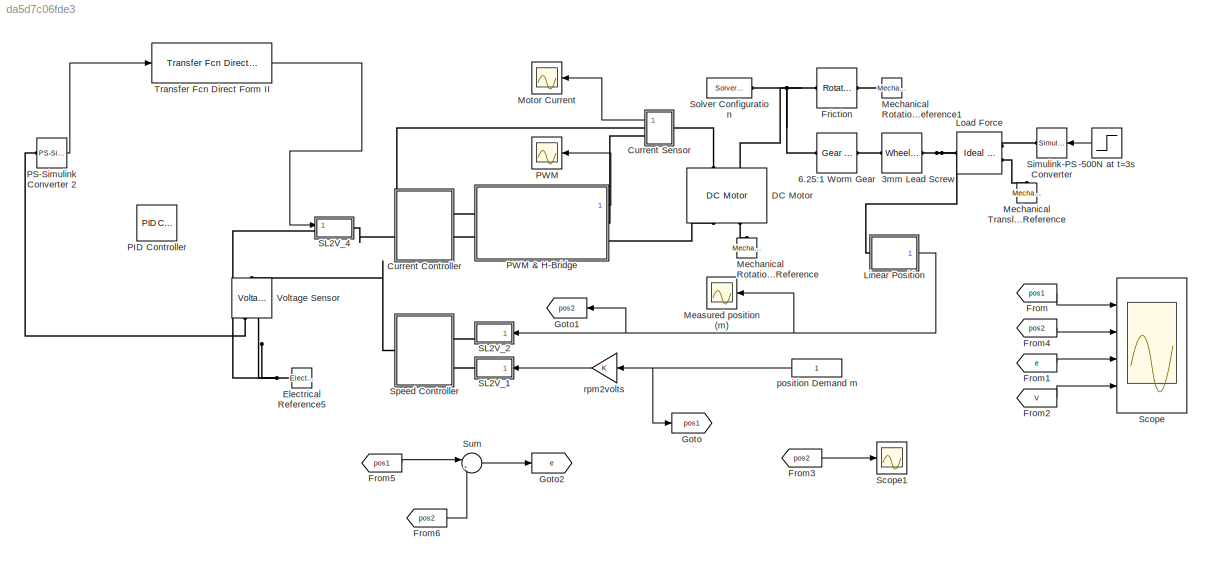
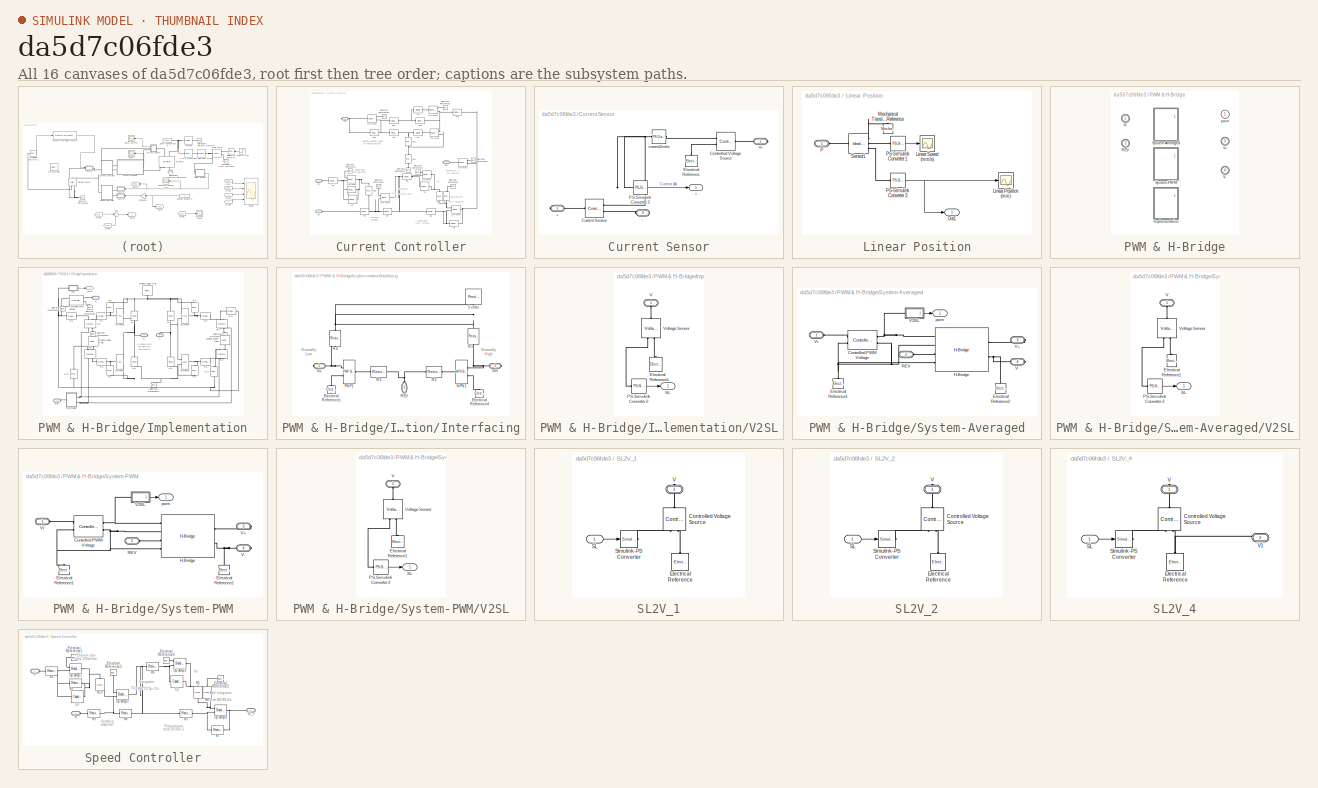
[diagram: thumbnail index - all 16 canvases of the model, root first then tree order]
MODEL slx_da5d7c06fde3
KIND model
CONFIG AbsTol = auto
CONFIG EnableMultiTasking = off
CONFIG FixedStep = auto
CONFIG MaxStep = auto
CONFIG MinStep = auto
CONFIG RelTol = 1e-3
CONFIG SampleTimeConstraint = Unconstrained
CONFIG Solver = VariableStepAuto
CONFIG SolverName = VariableStepAuto
CONFIG StartTime = 0.0
CONFIG StopTime = 6
BLOCK [Step] -500N at t=3s
  After = -1000
  SampleTime = 0
  Time = 3
BLOCK [Reference] 3mm Lead Screw  REF=fl_lib/Mechanical/Mechanisms/Wheel and Axle
  Ports = [0, 0, 0, 0, 0, 1, 1]
  SourceBlock = fl_lib/Mechanical/Mechanisms/Wheel and Axle
  SourceProductBaseCode = SS
  SourceType = Wheel and Axle
BLOCK [Reference] 6.25:1 Worm Gear  REF=fl_lib/Mechanical/Mechanisms/Gear Box
  Ports = [0, 0, 0, 0, 0, 1, 1]
  SourceBlock = fl_lib/Mechanical/Mechanisms/Gear Box
  SourceProductBaseCode = SS
  SourceType = Gear Box
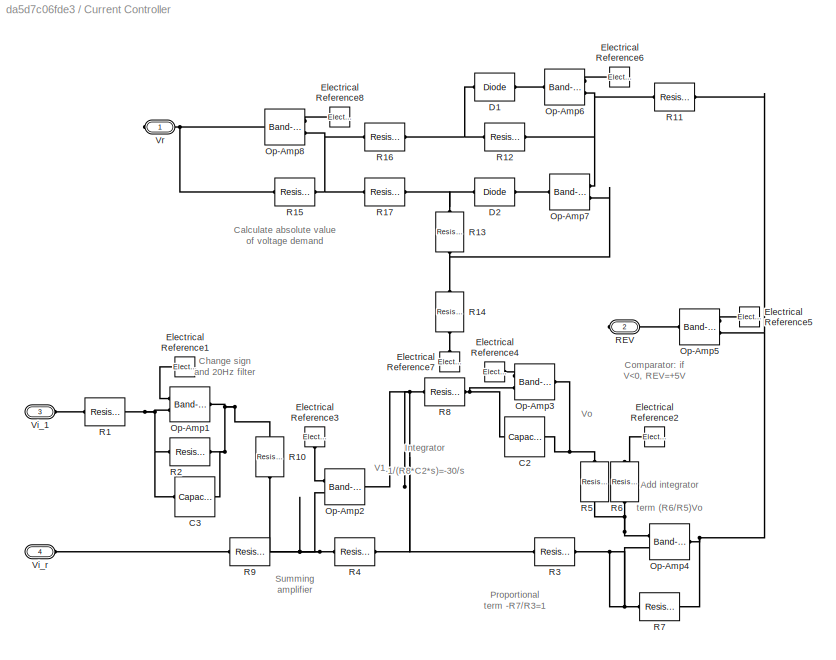
BLOCK [SubSystem] Current Controller
  Ports = [0, 0, 0, 0, 0, 2, 2]
  RequestExecContextInheritance = off
BLOCK [Reference] Current Controller/C2  REF=fl_lib/Electrical/Electrical Elements/Capacitor
  Ports = [0, 0, 0, 0, 0, 1, 1]
  SourceBlock = fl_lib/Electrical/Electrical Elements/Capacitor
  SourceProductBaseCode = SS
  SourceType = Capacitor
BLOCK [Reference] Current Controller/C3  REF=fl_lib/Electrical/Electrical Elements/Capacitor
  Ports = [0, 0, 0, 0, 0, 1, 1]
  SourceBlock = fl_lib/Electrical/Electrical Elements/Capacitor
  SourceProductBaseCode = SS
  SourceType = Capacitor
BLOCK [Reference] Current Controller/D1  REF=ee_lib/Semiconductors &
Converters/Diode
  Ports = [0, 0, 0, 0, 0, 1, 1]
  SourceBlock = ee_lib/Semiconductors &\nConverters/Diode
  SourceProductBaseCode = PS
  SourceType = Diode
BLOCK [Reference] Current Controller/D2  REF=ee_lib/Semiconductors &
Converters/Diode
  Ports = [0, 0, 0, 0, 0, 1, 1]
  SourceBlock = ee_lib/Semiconductors &\nConverters/Diode
  SourceProductBaseCode = PS
  SourceType = Diode
BLOCK [Reference] Current Controller/Electrical Reference1  REF=fl_lib/Electrical/Electrical Elements/Electrical Reference
  Ports = [0, 0, 0, 0, 0, 1]
  SourceBlock = fl_lib/Electrical/Electrical Elements/Electrical Reference
  SourceProductBaseCode = SS
  SourceType = Electrical Reference
BLOCK [Reference] Current Controller/Electrical Reference2  REF=fl_lib/Electrical/Electrical Elements/Electrical Reference
  Ports = [0, 0, 0, 0, 0, 1]
  SourceBlock = fl_lib/Electrical/Electrical Elements/Electrical Reference
  SourceProductBaseCode = SS
  SourceType = Electrical Reference
BLOCK [Reference] Current Controller/Electrical Reference3  REF=fl_lib/Electrical/Electrical Elements/Electrical Reference
  NameLocation = right
  Ports = [0, 0, 0, 0, 0, 1]
  SourceBlock = fl_lib/Electrical/Electrical Elements/Electrical Reference
  SourceProductBaseCode = SS
  SourceType = Electrical Reference
BLOCK [Reference] Current Controller/Electrical Reference4  REF=fl_lib/Electrical/Electrical Elements/Electrical Reference
  NameLocation = top
  Ports = [0, 0, 0, 0, 0, 1]
  SourceBlock = fl_lib/Electrical/Electrical Elements/Electrical Reference
  SourceProductBaseCode = SS
  SourceType = Electrical Reference
BLOCK [Reference] Current Controller/Electrical Reference5  REF=fl_lib/Electrical/Electrical Elements/Electrical Reference
  Ports = [0, 0, 0, 0, 0, 1]
  SourceBlock = fl_lib/Electrical/Electrical Elements/Electrical Reference
  SourceProductBaseCode = SS
  SourceType = Electrical Reference
BLOCK [Reference] Current Controller/Electrical Reference6  REF=fl_lib/Electrical/Electrical Elements/Electrical Reference
  Ports = [0, 0, 0, 0, 0, 1]
  SourceBlock = fl_lib/Electrical/Electrical Elements/Electrical Reference
  SourceProductBaseCode = SS
  SourceType = Electrical Reference
BLOCK [Reference] Current Controller/Electrical Reference7  REF=fl_lib/Electrical/Electrical Elements/Electrical Reference
  NameLocation = left
  Ports = [0, 0, 0, 0, 0, 1]
  SourceBlock = fl_lib/Electrical/Electrical Elements/Electrical Reference
  SourceProductBaseCode = SS
  SourceType = Electrical Reference
BLOCK [Reference] Current Controller/Electrical Reference8  REF=fl_lib/Electrical/Electrical Elements/Electrical Reference
  Ports = [0, 0, 0, 0, 0, 1]
  SourceBlock = fl_lib/Electrical/Electrical Elements/Electrical Reference
  SourceProductBaseCode = SS
  SourceType = Electrical Reference
BLOCK [Reference] Current Controller/Op-Amp1  REF=ee_lib/Integrated Circuits/Band-Limited Op-Amp
  Ports = [0, 0, 0, 0, 0, 2, 1]
  SourceBlock = ee_lib/Integrated Circuits/Band-Limited Op-Amp
  SourceProductBaseCode = PS
  SourceType = Band-Limited Op-Amp
BLOCK [Reference] Current Controller/Op-Amp2  REF=ee_lib/Integrated Circuits/Band-Limited Op-Amp
  Ports = [0, 0, 0, 0, 0, 2, 1]
  SourceBlock = ee_lib/Integrated Circuits/Band-Limited Op-Amp
  SourceProductBaseCode = PS
  SourceType = Band-Limited Op-Amp
BLOCK [Reference] Current Controller/Op-Amp3  REF=ee_lib/Integrated Circuits/Band-Limited Op-Amp
  Ports = [0, 0, 0, 0, 0, 2, 1]
  SourceBlock = ee_lib/Integrated Circuits/Band-Limited Op-Amp
  SourceProductBaseCode = PS
  SourceType = Band-Limited Op-Amp
BLOCK [Reference] Current Controller/Op-Amp4  REF=ee_lib/Integrated Circuits/Band-Limited Op-Amp
  Ports = [0, 0, 0, 0, 0, 2, 1]
  SourceBlock = ee_lib/Integrated Circuits/Band-Limited Op-Amp
  SourceProductBaseCode = PS
  SourceType = Band-Limited Op-Amp
BLOCK [Reference] Current Controller/Op-Amp5  REF=ee_lib/Integrated Circuits/Band-Limited Op-Amp
  Ports = [0, 0, 0, 0, 0, 2, 1]
  SourceBlock = ee_lib/Integrated Circuits/Band-Limited Op-Amp
  SourceProductBaseCode = PS
  SourceType = Band-Limited Op-Amp
BLOCK [Reference] Current Controller/Op-Amp6  REF=ee_lib/Integrated Circuits/Band-Limited Op-Amp
  Ports = [0, 0, 0, 0, 0, 2, 1]
  SourceBlock = ee_lib/Integrated Circuits/Band-Limited Op-Amp
  SourceProductBaseCode = PS
  SourceType = Band-Limited Op-Amp
BLOCK [Reference] Current Controller/Op-Amp7  REF=ee_lib/Integrated Circuits/Band-Limited Op-Amp
  Ports = [0, 0, 0, 0, 0, 2, 1]
  SourceBlock = ee_lib/Integrated Circuits/Band-Limited Op-Amp
  SourceProductBaseCode = PS
  SourceType = Band-Limited Op-Amp
BLOCK [Reference] Current Controller/Op-Amp8  REF=ee_lib/Integrated Circuits/Band-Limited Op-Amp
  Ports = [0, 0, 0, 0, 0, 2, 1]
  SourceBlock = ee_lib/Integrated Circuits/Band-Limited Op-Amp
  SourceProductBaseCode = PS
  SourceType = Band-Limited Op-Amp
BLOCK [Reference] Current Controller/R1  REF=fl_lib/Electrical/Electrical Elements/Resistor
  Ports = [0, 0, 0, 0, 0, 1, 1]
  SourceBlock = fl_lib/Electrical/Electrical Elements/Resistor
  SourceProductBaseCode = SS
  SourceType = Resistor
BLOCK [Reference] Current Controller/R10  REF=fl_lib/Electrical/Electrical Elements/Resistor
  NameLocation = right
  Ports = [0, 0, 0, 0, 0, 1, 1]
  SourceBlock = fl_lib/Electrical/Electrical Elements/Resistor
  SourceProductBaseCode = SS
  SourceType = Resistor
BLOCK [Reference] Current Controller/R11  REF=fl_lib/Electrical/Electrical Elements/Resistor
  Ports = [0, 0, 0, 0, 0, 1, 1]
  SourceBlock = fl_lib/Electrical/Electrical Elements/Resistor
  SourceProductBaseCode = SS
  SourceType = Resistor
BLOCK [Reference] Current Controller/R12  REF=fl_lib/Electrical/Electrical Elements/Resistor
  Ports = [0, 0, 0, 0, 0, 1, 1]
  SourceBlock = fl_lib/Electrical/Electrical Elements/Resistor
  SourceProductBaseCode = SS
  SourceType = Resistor
BLOCK [Reference] Current Controller/R13  REF=fl_lib/Electrical/Electrical Elements/Resistor
  NameLocation = left
  Ports = [0, 0, 0, 0, 0, 1, 1]
  SourceBlock = fl_lib/Electrical/Electrical Elements/Resistor
  SourceProductBaseCode = SS
  SourceType = Resistor
BLOCK [Reference] Current Controller/R14  REF=fl_lib/Electrical/Electrical Elements/Resistor
  NameLocation = left
  Ports = [0, 0, 0, 0, 0, 1, 1]
  SourceBlock = fl_lib/Electrical/Electrical Elements/Resistor
  SourceProductBaseCode = SS
  SourceType = Resistor
BLOCK [Reference] Current Controller/R15  REF=fl_lib/Electrical/Electrical Elements/Resistor
  Ports = [0, 0, 0, 0, 0, 1, 1]
  SourceBlock = fl_lib/Electrical/Electrical Elements/Resistor
  SourceProductBaseCode = SS
  SourceType = Resistor
BLOCK [Reference] Current Controller/R16  REF=fl_lib/Electrical/Electrical Elements/Resistor
  Ports = [0, 0, 0, 0, 0, 1, 1]
  SourceBlock = fl_lib/Electrical/Electrical Elements/Resistor
  SourceProductBaseCode = SS
  SourceType = Resistor
BLOCK [Reference] Current Controller/R17  REF=fl_lib/Electrical/Electrical Elements/Resistor
  Ports = [0, 0, 0, 0, 0, 1, 1]
  SourceBlock = fl_lib/Electrical/Electrical Elements/Resistor
  SourceProductBaseCode = SS
  SourceType = Resistor
BLOCK [Reference] Current Controller/R2  REF=fl_lib/Electrical/Electrical Elements/Resistor
  Ports = [0, 0, 0, 0, 0, 1, 1]
  SourceBlock = fl_lib/Electrical/Electrical Elements/Resistor
  SourceProductBaseCode = SS
  SourceType = Resistor
BLOCK [Reference] Current Controller/R3  REF=fl_lib/Electrical/Electrical Elements/Resistor
  Ports = [0, 0, 0, 0, 0, 1, 1]
  SourceBlock = fl_lib/Electrical/Electrical Elements/Resistor
  SourceProductBaseCode = SS
  SourceType = Resistor
BLOCK [Reference] Current Controller/R4  REF=fl_lib/Electrical/Electrical Elements/Resistor
  Ports = [0, 0, 0, 0, 0, 1, 1]
  SourceBlock = fl_lib/Electrical/Electrical Elements/Resistor
  SourceProductBaseCode = SS
  SourceType = Resistor
BLOCK [Reference] Current Controller/R5  REF=fl_lib/Electrical/Electrical Elements/Resistor
  NameLocation = left
  Ports = [0, 0, 0, 0, 0, 1, 1]
  SourceBlock = fl_lib/Electrical/Electrical Elements/Resistor
  SourceProductBaseCode = SS
  SourceType = Resistor
BLOCK [Reference] Current Controller/R6  REF=fl_lib/Electrical/Electrical Elements/Resistor
  NameLocation = right
  Ports = [0, 0, 0, 0, 0, 1, 1]
  SourceBlock = fl_lib/Electrical/Electrical Elements/Resistor
  SourceProductBaseCode = SS
  SourceType = Resistor
BLOCK [Reference] Current Controller/R7  REF=fl_lib/Electrical/Electrical Elements/Resistor
  Ports = [0, 0, 0, 0, 0, 1, 1]
  SourceBlock = fl_lib/Electrical/Electrical Elements/Resistor
  SourceProductBaseCode = SS
  SourceType = Resistor
BLOCK [Reference] Current Controller/R8  REF=fl_lib/Electrical/Electrical Elements/Resistor
  Ports = [0, 0, 0, 0, 0, 1, 1]
  SourceBlock = fl_lib/Electrical/Electrical Elements/Resistor
  SourceProductBaseCode = SS
  SourceType = Resistor
BLOCK [Reference] Current Controller/R9  REF=fl_lib/Electrical/Electrical Elements/Resistor
  Ports = [0, 0, 0, 0, 0, 1, 1]
  SourceBlock = fl_lib/Electrical/Electrical Elements/Resistor
  SourceProductBaseCode = SS
  SourceType = Resistor
BLOCK [PMIOPort] Current Controller/REV
  Port = 2
  Side = Right
BLOCK [PMIOPort] Current Controller/Vi_1
  Port = 3
  Side = Left
BLOCK [PMIOPort] Current Controller/Vi_r
  NameLocation = top
  Port = 4
  Side = Left
BLOCK [PMIOPort] Current Controller/Vr
  Side = Right
BLOCK [SubSystem] Current Sensor
  Ports = [0, 1, 0, 0, 0, 1, 2]
  RequestExecContextInheritance = off
BLOCK [PMIOPort] Current Sensor/+
  Port = 2
  Side = Right
BLOCK [PMIOPort] Current Sensor/-
  Port = 3
  Side = Left
BLOCK [Reference] Current Sensor/Controlled Voltage Source  REF=fl_lib/Electrical/Electrical Sources/Controlled Voltage
Source
  Ports = [0, 0, 0, 0, 0, 1, 2]
  SourceBlock = fl_lib/Electrical/Electrical Sources/Controlled Voltage\nSource
  SourceProductBaseCode = SS
  SourceType = Controlled Voltage\nSource
BLOCK [Reference] Current Sensor/Current Sensor  REF=fl_lib/Electrical/Electrical Sensors/Current Sensor
  Ports = [0, 0, 0, 0, 0, 1, 2]
  SourceBlock = fl_lib/Electrical/Electrical Sensors/Current Sensor
  SourceProductBaseCode = SS
  SourceType = Current Sensor
BLOCK [Reference] Current Sensor/Electrical Reference  REF=fl_lib/Electrical/Electrical Elements/Electrical Reference
  NameLocation = right
  Ports = [0, 0, 0, 0, 0, 1]
  SourceBlock = fl_lib/Electrical/Electrical Elements/Electrical Reference
  SourceProductBaseCode = SS
  SourceType = Electrical Reference
BLOCK [Reference] Current Sensor/PS-Simulink Converter 2  REF=nesl_utility/PS-Simulink
Converter
  Ports = [0, 1, 0, 0, 0, 1]
  SourceBlock = nesl_utility/PS-Simulink\nConverter
  SourceProductBaseCode = SS
  SourceType = PS-Simulink\nConverter
BLOCK [PMIOPort] Current Sensor/Vi
  Side = Right
BLOCK [Reference] Current Sensor/current2volts  REF=fl_ps_legacy_lib/Legacy Physical
Signals/Functions/PS Gain
  Ports = [0, 0, 0, 0, 0, 1, 1]
  SourceBlock = fl_ps_legacy_lib/Legacy Physical\nSignals/Functions/PS Gain
  SourceProductBaseCode = SS
  SourceType = PS Gain
BLOCK [Outport] Current Sensor/i
BLOCK [Reference] DC Motor  REF=ee_lib/Electromechanical/Brushed Motors/DC Motor
  NameLocation = left
  Ports = [0, 0, 0, 0, 0, 2, 2]
  SourceBlock = ee_lib/Electromechanical/Brushed Motors/DC Motor
  SourceProductBaseCode = PS
  SourceType = DC Motor
BLOCK [Reference] Electrical Reference5  REF=fl_lib/Electrical/Electrical Elements/Electrical Reference
  Ports = [0, 0, 0, 0, 0, 1]
  SourceBlock = fl_lib/Electrical/Electrical Elements/Electrical Reference
  SourceProductBaseCode = SS
  SourceType = Electrical Reference
BLOCK [Reference] Friction  REF=fl_lib/Mechanical/Rotational Elements/Rotational Friction
  Ports = [0, 0, 0, 0, 0, 1, 1]
  SourceBlock = fl_lib/Mechanical/Rotational Elements/Rotational Friction
  SourceProductBaseCode = SS
  SourceType = Rotational Friction
BLOCK [From] From
  GotoTag = pos1
BLOCK [From] From1
  GotoTag = e
BLOCK [From] From2
  GotoTag = V
BLOCK [From] From3
  GotoTag = pos2
BLOCK [From] From4
  GotoTag = pos2
BLOCK [From] From5
  GotoTag = pos1
BLOCK [From] From6
  GotoTag = pos2
BLOCK [Goto] Goto
  GotoTag = pos1
BLOCK [Goto] Goto1
  GotoTag = pos2
BLOCK [Goto] Goto2
  GotoTag = e
BLOCK [SubSystem] Linear Position
  NameLocation = top
  Ports = [0, 1, 0, 0, 0, 1]
  RequestExecContextInheritance = off
BLOCK [Scope] Linear Position/Linear Position (mm)
  Floating = off
  NumInputPorts = 1
  Ports = [1]
  ScopeSpecificationString = Simulink.scopes.TimeScopeBlockCfg('CurrentConfiguration', extmgr.ConfigurationSet(extmgr.Configuration('Core','General UI',true),extmgr.Configuration('Core','Source UI',true),extmgr.Configuration('Sources','WiredSimulink',true,'DataLoggingVariableName','ScopeData2','DataLoggingSaveFormat','StructureWithTime','DataLoggingDecimation','1','DataLoggingDecimateData',true),extmgr.Configuration('Visuals'...<+1714ch>
BLOCK [Scope] Linear Position/Linear Speed (mm//s)
  Floating = off
  NumInputPorts = 1
  Ports = [1]
  ScopeSpecificationString = Simulink.scopes.TimeScopeBlockCfg('CurrentConfiguration', extmgr.ConfigurationSet(extmgr.Configuration('Core','General UI',true),extmgr.Configuration('Core','Source UI',true),extmgr.Configuration('Sources','WiredSimulink',true,'DataLoggingSaveFormat','StructureWithTime','DataLoggingDecimation','1','DataLoggingDecimateData',true),extmgr.Configuration('Visuals','Time Domain',true,'SerializedDisplays...<+1679ch>
BLOCK [Reference] Linear Position/Mechanical Translational Reference  REF=fl_lib/Mechanical/Translational
Elements/Mechanical
Translational
Reference
  NameLocation = right
  Ports = [0, 0, 0, 0, 0, 1]
  SourceBlock = fl_lib/Mechanical/Translational\nElements/Mechanical\nTranslational\nReference
  SourceProductBaseCode = SS
  SourceType = Mechanical\nTranslational\nReference
BLOCK [Outport] Linear Position/Out1
BLOCK [PMIOPort] Linear Position/P
  Side = Left
BLOCK [Reference] Linear Position/PS-Simulink Converter 1  REF=nesl_utility/PS-Simulink
Converter
  Ports = [0, 1, 0, 0, 0, 1]
  SourceBlock = nesl_utility/PS-Simulink\nConverter
  SourceProductBaseCode = SS
  SourceType = PS-Simulink\nConverter
BLOCK [Reference] Linear Position/PS-Simulink Converter 3  REF=nesl_utility/PS-Simulink
Converter
  Ports = [0, 1, 0, 0, 0, 1]
  SourceBlock = nesl_utility/PS-Simulink\nConverter
  SourceProductBaseCode = SS
  SourceType = PS-Simulink\nConverter
BLOCK [Reference] Linear Position/Sensor1  REF=fl_lib/Mechanical/Mechanical Sensors/Ideal Translational
Motion Sensor
  Ports = [0, 0, 0, 0, 0, 1, 3]
  SourceBlock = fl_lib/Mechanical/Mechanical Sensors/Ideal Translational\nMotion Sensor
  SourceProductBaseCode = SS
  SourceType = Ideal Translational\nMotion Sensor
BLOCK [Reference] Load Force  REF=fl_lib/Mechanical/Mechanical Sources/Ideal Force Source
  Ports = [0, 0, 0, 0, 0, 1, 2]
  SourceBlock = fl_lib/Mechanical/Mechanical Sources/Ideal Force Source
  SourceProductBaseCode = SS
  SourceType = Ideal Force Source
BLOCK [Scope] Measured position (m)
  Floating = off
  NumInputPorts = 1
  Ports = [1]
  ScopeSpecificationString = Simulink.scopes.TimeScopeBlockCfg('CurrentConfiguration', extmgr.ConfigurationSet(extmgr.Configuration('Core','General UI',true),extmgr.Configuration('Core','Source UI',true),extmgr.Configuration('Sources','WiredSimulink',true,'DataLoggingVariableName','ScopeData1','DataLoggingSaveFormat','StructureWithTime','DataLoggingDecimation','1','DataLoggingDecimateData',true),extmgr.Configuration('Visuals'...<+1749ch>
BLOCK [Reference] Mechanical Rotational Reference  REF=fl_lib/Mechanical/Rotational Elements/Mechanical
Rotational Reference
  NameLocation = left
  Ports = [0, 0, 0, 0, 0, 1]
  SourceBlock = fl_lib/Mechanical/Rotational Elements/Mechanical\nRotational Reference
  SourceProductBaseCode = SS
  SourceType = Mechanical\nRotational Reference
BLOCK [Reference] Mechanical Rotational Reference1  REF=fl_lib/Mechanical/Rotational Elements/Mechanical
Rotational Reference
  Ports = [0, 0, 0, 0, 0, 1]
  SourceBlock = fl_lib/Mechanical/Rotational Elements/Mechanical\nRotational Reference
  SourceProductBaseCode = SS
  SourceType = Mechanical\nRotational Reference
BLOCK [Reference] Mechanical Translational Reference  REF=fl_lib/Mechanical/Translational
Elements/Mechanical
Translational
Reference
  NameLocation = right
  Ports = [0, 0, 0, 0, 0, 1]
  SourceBlock = fl_lib/Mechanical/Translational\nElements/Mechanical\nTranslational\nReference
  SourceProductBaseCode = SS
  SourceType = Mechanical\nTranslational\nReference
BLOCK [Scope] Motor Current
  Floating = off
  NumInputPorts = 1
  Ports = [1]
  ScopeSpecificationString = Simulink.scopes.TimeScopeBlockCfg('CurrentConfiguration', extmgr.ConfigurationSet(extmgr.Configuration('Core','General UI',true),extmgr.Configuration('Core','Source UI',true),extmgr.Configuration('Sources','WiredSimulink',true,'DataLoggingVariableName','ScopeData2','DataLoggingSaveFormat','StructureWithTime','DataLoggingDecimation','1','DataLoggingDecimateData',true),extmgr.Configuration('Visuals'...<+1670ch>
BLOCK [Reference] PID Controller  REF=simulink/Continuous/PID Controller
  Ports = [1, 1]
  SourceBlock = simulink/Continuous/PID Controller
  SourceProductBaseCode = SL
  SourceType = PID 1dof
BLOCK [Reference] PS-Simulink Converter 2  REF=nesl_utility/PS-Simulink
Converter
  Ports = [0, 1, 0, 0, 0, 1]
  SourceBlock = nesl_utility/PS-Simulink\nConverter
  SourceProductBaseCode = SS
  SourceType = PS-Simulink\nConverter
BLOCK [Scope] PWM
  Floating = off
  NumInputPorts = 1
  Ports = [1]
  ScopeSpecificationString = Simulink.scopes.TimeScopeBlockCfg('CurrentConfiguration', extmgr.ConfigurationSet(extmgr.Configuration('Core','General UI',true),extmgr.Configuration('Core','Source UI',true),extmgr.Configuration('Sources','WiredSimulink',true,'DataLoggingVariableName','ScopeData3','DataLoggingSaveFormat','StructureWithTime','DataLoggingDecimation','1','DataLoggingDecimateData',true),extmgr.Configuration('Visuals'...<+1750ch>
BLOCK [SubSystem] PWM & H-Bridge
  AttributesFormatString = %<BlockChoice>
  LabelModeActiveChoice = pwm_choice==1
  Ports = [0, 1, 0, 0, 0, 2, 2]
  RequestExecContextInheritance = off
  Variant = on
  VariantControlMode = Label
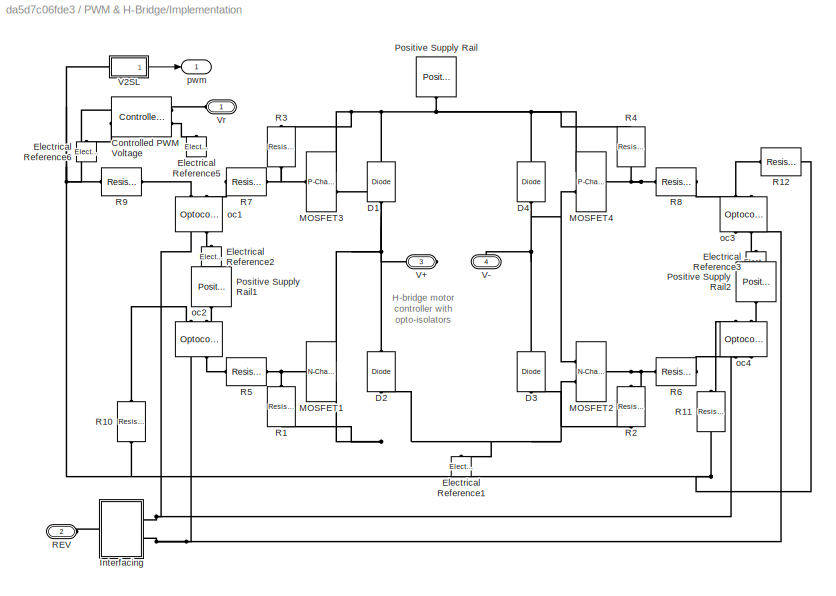
BLOCK [SubSystem] PWM & H-Bridge/Implementation
  Ports = [0, 1, 0, 0, 0, 2, 2]
  RequestExecContextInheritance = off
  VariantControl = pwm_choice==3
BLOCK [Reference] PWM & H-Bridge/Implementation/Controlled PWM Voltage  REF=ee_lib/Integrated Circuits/Controlled PWM
Voltage
  Ports = [0, 0, 0, 0, 0, 2, 2]
  SourceBlock = ee_lib/Integrated Circuits/Controlled PWM\nVoltage
  SourceProductBaseCode = PS
  SourceType = Controlled PWM\nVoltage
BLOCK [Reference] PWM & H-Bridge/Implementation/D1  REF=fl_lib/Electrical/Electrical Elements/Diode
  NameLocation = right
  Ports = [0, 0, 0, 0, 0, 1, 1]
  SourceBlock = fl_lib/Electrical/Electrical Elements/Diode
  SourceProductBaseCode = SS
  SourceType = Diode
BLOCK [Reference] PWM & H-Bridge/Implementation/D2  REF=fl_lib/Electrical/Electrical Elements/Diode
  NameLocation = right
  Ports = [0, 0, 0, 0, 0, 1, 1]
  SourceBlock = fl_lib/Electrical/Electrical Elements/Diode
  SourceProductBaseCode = SS
  SourceType = Diode
BLOCK [Reference] PWM & H-Bridge/Implementation/D3  REF=fl_lib/Electrical/Electrical Elements/Diode
  NameLocation = right
  Ports = [0, 0, 0, 0, 0, 1, 1]
  SourceBlock = fl_lib/Electrical/Electrical Elements/Diode
  SourceProductBaseCode = SS
  SourceType = Diode
BLOCK [Reference] PWM & H-Bridge/Implementation/D4  REF=fl_lib/Electrical/Electrical Elements/Diode
  NameLocation = right
  Ports = [0, 0, 0, 0, 0, 1, 1]
  SourceBlock = fl_lib/Electrical/Electrical Elements/Diode
  SourceProductBaseCode = SS
  SourceType = Diode
BLOCK [Reference] PWM & H-Bridge/Implementation/Electrical Reference1  REF=fl_lib/Electrical/Electrical Elements/Electrical Reference
  NameLocation = right
  Ports = [0, 0, 0, 0, 0, 1]
  SourceBlock = fl_lib/Electrical/Electrical Elements/Electrical Reference
  SourceProductBaseCode = SS
  SourceType = Electrical Reference
BLOCK [Reference] PWM & H-Bridge/Implementation/Electrical Reference2  REF=fl_lib/Electrical/Electrical Elements/Electrical Reference
  NameLocation = right
  Ports = [0, 0, 0, 0, 0, 1]
  SourceBlock = fl_lib/Electrical/Electrical Elements/Electrical Reference
  SourceProductBaseCode = SS
  SourceType = Electrical Reference
BLOCK [Reference] PWM & H-Bridge/Implementation/Electrical Reference3  REF=fl_lib/Electrical/Electrical Elements/Electrical Reference
  NameLocation = right
  Ports = [0, 0, 0, 0, 0, 1]
  SourceBlock = fl_lib/Electrical/Electrical Elements/Electrical Reference
  SourceProductBaseCode = SS
  SourceType = Electrical Reference
BLOCK [Reference] PWM & H-Bridge/Implementation/Electrical Reference5  REF=fl_lib/Electrical/Electrical Elements/Electrical Reference
  NameLocation = right
  Ports = [0, 0, 0, 0, 0, 1]
  SourceBlock = fl_lib/Electrical/Electrical Elements/Electrical Reference
  SourceProductBaseCode = SS
  SourceType = Electrical Reference
BLOCK [Reference] PWM & H-Bridge/Implementation/Electrical Reference6  REF=fl_lib/Electrical/Electrical Elements/Electrical Reference
  NameLocation = right
  Ports = [0, 0, 0, 0, 0, 1]
  SourceBlock = fl_lib/Electrical/Electrical Elements/Electrical Reference
  SourceProductBaseCode = SS
  SourceType = Electrical Reference
BLOCK [SubSystem] PWM & H-Bridge/Implementation/Interfacing
  Ports = [0, 0, 0, 0, 0, 1, 2]
  RequestExecContextInheritance = off
BLOCK [Reference] PWM & H-Bridge/Implementation/Interfacing/5 volts  REF=ee_lib/Sources/Positive Supply Rail
  NameLocation = right
  Ports = [0, 0, 0, 0, 0, 0, 1]
  SourceBlock = ee_lib/Sources/Positive Supply Rail
  SourceProductBaseCode = PS
  SourceType = Positive Supply Rail
BLOCK [Reference] PWM & H-Bridge/Implementation/Interfacing/Electrical Reference1  REF=fl_lib/Electrical/Electrical Elements/Electrical Reference
  NameLocation = right
  Ports = [0, 0, 0, 0, 0, 1]
  SourceBlock = fl_lib/Electrical/Electrical Elements/Electrical Reference
  SourceProductBaseCode = SS
  SourceType = Electrical Reference
BLOCK [Reference] PWM & H-Bridge/Implementation/Interfacing/Electrical Reference4  REF=fl_lib/Electrical/Electrical Elements/Electrical Reference
  NameLocation = right
  Ports = [0, 0, 0, 0, 0, 1]
  SourceBlock = fl_lib/Electrical/Electrical Elements/Electrical Reference
  SourceProductBaseCode = SS
  SourceType = Electrical Reference
BLOCK [PMIOPort] PWM & H-Bridge/Implementation/Interfacing/NH
  Port = 2
  Side = Right
BLOCK [PMIOPort] PWM & H-Bridge/Implementation/Interfacing/NL
  Side = Right
BLOCK [Reference] PWM & H-Bridge/Implementation/Interfacing/NPN1  REF=ee_lib/Semiconductors &
Converters/NPN Bipolar
Transistor
  Ports = [0, 0, 0, 0, 0, 1, 2]
  SourceBlock = ee_lib/Semiconductors &\nConverters/NPN Bipolar\nTransistor
  SourceProductBaseCode = PS
  SourceType = NPN Bipolar\nTransistor
BLOCK [Reference] PWM & H-Bridge/Implementation/Interfacing/PNP1  REF=ee_lib/Semiconductors &
Converters/PNP Bipolar
Transistor
  Ports = [0, 0, 0, 0, 0, 1, 2]
  SourceBlock = ee_lib/Semiconductors &\nConverters/PNP Bipolar\nTransistor
  SourceProductBaseCode = PS
  SourceType = PNP Bipolar\nTransistor
BLOCK [Reference] PWM & H-Bridge/Implementation/Interfacing/R1  REF=fl_lib/Electrical/Electrical Elements/Resistor
  NameLocation = left
  Ports = [0, 0, 0, 0, 0, 1, 1]
  SourceBlock = fl_lib/Electrical/Electrical Elements/Resistor
  SourceProductBaseCode = SS
  SourceType = Resistor
BLOCK [Reference] PWM & H-Bridge/Implementation/Interfacing/R2  REF=fl_lib/Electrical/Electrical Elements/Resistor
  Ports = [0, 0, 0, 0, 0, 1, 1]
  SourceBlock = fl_lib/Electrical/Electrical Elements/Resistor
  SourceProductBaseCode = SS
  SourceType = Resistor
BLOCK [Reference] PWM & H-Bridge/Implementation/Interfacing/R3  REF=fl_lib/Electrical/Electrical Elements/Resistor
  Ports = [0, 0, 0, 0, 0, 1, 1]
  SourceBlock = fl_lib/Electrical/Electrical Elements/Resistor
  SourceProductBaseCode = SS
  SourceType = Resistor
BLOCK [Reference] PWM & H-Bridge/Implementation/Interfacing/R4  REF=fl_lib/Electrical/Electrical Elements/Resistor
  NameLocation = left
  Ports = [0, 0, 0, 0, 0, 1, 1]
  SourceBlock = fl_lib/Electrical/Electrical Elements/Resistor
  SourceProductBaseCode = SS
  SourceType = Resistor
BLOCK [PMIOPort] PWM & H-Bridge/Implementation/Interfacing/REV
  NameLocation = right
  Port = 3
  Side = Left
BLOCK [Reference] PWM & H-Bridge/Implementation/MOSFET1  REF=ee_lib/Semiconductors &
Converters/N-Channel MOSFET
  Ports = [0, 0, 0, 0, 0, 1, 2]
  SourceBlock = ee_lib/Semiconductors &\nConverters/N-Channel MOSFET
  SourceProductBaseCode = PS
  SourceType = N-Channel MOSFET
BLOCK [Reference] PWM & H-Bridge/Implementation/MOSFET2  REF=ee_lib/Semiconductors &
Converters/N-Channel MOSFET
  Ports = [0, 0, 0, 0, 0, 1, 2]
  SourceBlock = ee_lib/Semiconductors &\nConverters/N-Channel MOSFET
  SourceProductBaseCode = PS
  SourceType = N-Channel MOSFET
BLOCK [Reference] PWM & H-Bridge/Implementation/MOSFET3  REF=ee_lib/Semiconductors &
Converters/P-Channel MOSFET
  Ports = [0, 0, 0, 0, 0, 1, 2]
  SourceBlock = ee_lib/Semiconductors &\nConverters/P-Channel MOSFET
  SourceProductBaseCode = PS
  SourceType = P-Channel MOSFET
BLOCK [Reference] PWM & H-Bridge/Implementation/MOSFET4  REF=ee_lib/Semiconductors &
Converters/P-Channel MOSFET
  Ports = [0, 0, 0, 0, 0, 1, 2]
  SourceBlock = ee_lib/Semiconductors &\nConverters/P-Channel MOSFET
  SourceProductBaseCode = PS
  SourceType = P-Channel MOSFET
BLOCK [Reference] PWM & H-Bridge/Implementation/Positive Supply Rail  REF=ee_lib/Sources/Positive Supply Rail
  NameLocation = right
  Ports = [0, 0, 0, 0, 0, 0, 1]
  SourceBlock = ee_lib/Sources/Positive Supply Rail
  SourceProductBaseCode = PS
  SourceType = Positive Supply Rail
BLOCK [Reference] PWM & H-Bridge/Implementation/Positive Supply Rail1  REF=ee_lib/Sources/Positive Supply Rail
  NameLocation = right
  Ports = [0, 0, 0, 0, 0, 0, 1]
  SourceBlock = ee_lib/Sources/Positive Supply Rail
  SourceProductBaseCode = PS
  SourceType = Positive Supply Rail
BLOCK [Reference] PWM & H-Bridge/Implementation/Positive Supply Rail2  REF=ee_lib/Sources/Positive Supply Rail
  NameLocation = right
  Ports = [0, 0, 0, 0, 0, 0, 1]
  SourceBlock = ee_lib/Sources/Positive Supply Rail
  SourceProductBaseCode = PS
  SourceType = Positive Supply Rail
BLOCK [Reference] PWM & H-Bridge/Implementation/R1  REF=fl_lib/Electrical/Electrical Elements/Resistor
  NameLocation = left
  Ports = [0, 0, 0, 0, 0, 1, 1]
  SourceBlock = fl_lib/Electrical/Electrical Elements/Resistor
  SourceProductBaseCode = SS
  SourceType = Resistor
BLOCK [Reference] PWM & H-Bridge/Implementation/R10  REF=fl_lib/Electrical/Electrical Elements/Resistor
  NameLocation = left
  Ports = [0, 0, 0, 0, 0, 1, 1]
  SourceBlock = fl_lib/Electrical/Electrical Elements/Resistor
  SourceProductBaseCode = SS
  SourceType = Resistor
BLOCK [Reference] PWM & H-Bridge/Implementation/R11  REF=fl_lib/Electrical/Electrical Elements/Resistor
  NameLocation = left
  Ports = [0, 0, 0, 0, 0, 1, 1]
  SourceBlock = fl_lib/Electrical/Electrical Elements/Resistor
  SourceProductBaseCode = SS
  SourceType = Resistor
BLOCK [Reference] PWM & H-Bridge/Implementation/R12  REF=fl_lib/Electrical/Electrical Elements/Resistor
  Ports = [0, 0, 0, 0, 0, 1, 1]
  SourceBlock = fl_lib/Electrical/Electrical Elements/Resistor
  SourceProductBaseCode = SS
  SourceType = Resistor
BLOCK [Reference] PWM & H-Bridge/Implementation/R2  REF=fl_lib/Electrical/Electrical Elements/Resistor
  NameLocation = right
  Ports = [0, 0, 0, 0, 0, 1, 1]
  SourceBlock = fl_lib/Electrical/Electrical Elements/Resistor
  SourceProductBaseCode = SS
  SourceType = Resistor
BLOCK [Reference] PWM & H-Bridge/Implementation/R3  REF=fl_lib/Electrical/Electrical Elements/Resistor
  NameLocation = left
  Ports = [0, 0, 0, 0, 0, 1, 1]
  SourceBlock = fl_lib/Electrical/Electrical Elements/Resistor
  SourceProductBaseCode = SS
  SourceType = Resistor
BLOCK [Reference] PWM & H-Bridge/Implementation/R4  REF=fl_lib/Electrical/Electrical Elements/Resistor
  NameLocation = left
  Ports = [0, 0, 0, 0, 0, 1, 1]
  SourceBlock = fl_lib/Electrical/Electrical Elements/Resistor
  SourceProductBaseCode = SS
  SourceType = Resistor
BLOCK [Reference] PWM & H-Bridge/Implementation/R5  REF=fl_lib/Electrical/Electrical Elements/Resistor
  NameLocation = top
  Ports = [0, 0, 0, 0, 0, 1, 1]
  SourceBlock = fl_lib/Electrical/Electrical Elements/Resistor
  SourceProductBaseCode = SS
  SourceType = Resistor
BLOCK [Reference] PWM & H-Bridge/Implementation/R6  REF=fl_lib/Electrical/Electrical Elements/Resistor
  NameLocation = top
  Ports = [0, 0, 0, 0, 0, 1, 1]
  SourceBlock = fl_lib/Electrical/Electrical Elements/Resistor
  SourceProductBaseCode = SS
  SourceType = Resistor
BLOCK [Reference] PWM & H-Bridge/Implementation/R7  REF=fl_lib/Electrical/Electrical Elements/Resistor
  Ports = [0, 0, 0, 0, 0, 1, 1]
  SourceBlock = fl_lib/Electrical/Electrical Elements/Resistor
  SourceProductBaseCode = SS
  SourceType = Resistor
BLOCK [Reference] PWM & H-Bridge/Implementation/R8  REF=fl_lib/Electrical/Electrical Elements/Resistor
  Ports = [0, 0, 0, 0, 0, 1, 1]
  SourceBlock = fl_lib/Electrical/Electrical Elements/Resistor
  SourceProductBaseCode = SS
  SourceType = Resistor
BLOCK [Reference] PWM & H-Bridge/Implementation/R9  REF=fl_lib/Electrical/Electrical Elements/Resistor
  Ports = [0, 0, 0, 0, 0, 1, 1]
  SourceBlock = fl_lib/Electrical/Electrical Elements/Resistor
  SourceProductBaseCode = SS
  SourceType = Resistor
BLOCK [PMIOPort] PWM & H-Bridge/Implementation/REV
  Port = 2
  Side = Left
BLOCK [PMIOPort] PWM & H-Bridge/Implementation/V+
  Port = 3
  Side = Right
BLOCK [PMIOPort] PWM & H-Bridge/Implementation/V-
  Port = 4
  Side = Right
BLOCK [SubSystem] PWM & H-Bridge/Implementation/V2SL
  Ports = [0, 1, 0, 0, 0, 1]
  RequestExecContextInheritance = off
BLOCK [Reference] PWM & H-Bridge/Implementation/V2SL/Electrical Reference1  REF=fl_lib/Electrical/Electrical Elements/Electrical Reference
  NameLocation = right
  Ports = [0, 0, 0, 0, 0, 1]
  SourceBlock = fl_lib/Electrical/Electrical Elements/Electrical Reference
  SourceProductBaseCode = SS
  SourceType = Electrical Reference
BLOCK [Reference] PWM & H-Bridge/Implementation/V2SL/PS-Simulink Converter 2  REF=nesl_utility/PS-Simulink
Converter
  Ports = [0, 1, 0, 0, 0, 1]
  SourceBlock = nesl_utility/PS-Simulink\nConverter
  SourceProductBaseCode = SS
  SourceType = PS-Simulink\nConverter
BLOCK [Outport] PWM & H-Bridge/Implementation/V2SL/SL
BLOCK [PMIOPort] PWM & H-Bridge/Implementation/V2SL/V
  NameLocation = right
  Side = Left
BLOCK [Reference] PWM & H-Bridge/Implementation/V2SL/Voltage Sensor  REF=fl_lib/Electrical/Electrical Sensors/Voltage Sensor
  NameLocation = right
  Ports = [0, 0, 0, 0, 0, 1, 2]
  SourceBlock = fl_lib/Electrical/Electrical Sensors/Voltage Sensor
  SourceProductBaseCode = SS
  SourceType = Voltage Sensor
BLOCK [PMIOPort] PWM & H-Bridge/Implementation/Vr
  Side = Left
BLOCK [Reference] PWM & H-Bridge/Implementation/oc1  REF=ee_lib/Semiconductors &
Converters/Optocoupler
  NameLocation = left
  Ports = [0, 0, 0, 0, 0, 2, 2]
  SourceBlock = ee_lib/Semiconductors &\nConverters/Optocoupler
  SourceProductBaseCode = PS
  SourceType = Optocoupler
BLOCK [Reference] PWM & H-Bridge/Implementation/oc2  REF=ee_lib/Semiconductors &
Converters/Optocoupler
  NameLocation = left
  Ports = [0, 0, 0, 0, 0, 2, 2]
  SourceBlock = ee_lib/Semiconductors &\nConverters/Optocoupler
  SourceProductBaseCode = PS
  SourceType = Optocoupler
BLOCK [Reference] PWM & H-Bridge/Implementation/oc3  REF=ee_lib/Semiconductors &
Converters/Optocoupler
  NameLocation = left
  Ports = [0, 0, 0, 0, 0, 2, 2]
  SourceBlock = ee_lib/Semiconductors &\nConverters/Optocoupler
  SourceProductBaseCode = PS
  SourceType = Optocoupler
BLOCK [Reference] PWM & H-Bridge/Implementation/oc4  REF=ee_lib/Semiconductors &
Converters/Optocoupler
  NameLocation = left
  Ports = [0, 0, 0, 0, 0, 2, 2]
  SourceBlock = ee_lib/Semiconductors &\nConverters/Optocoupler
  SourceProductBaseCode = PS
  SourceType = Optocoupler
BLOCK [Outport] PWM & H-Bridge/Implementation/pwm
BLOCK [PMIOPort] PWM & H-Bridge/REV
  Port = 2
  Side = Left
BLOCK [SubSystem] PWM & H-Bridge/System-Averaged
  Ports = [0, 1, 0, 0, 0, 2, 2]
  RequestExecContextInheritance = off
  VariantControl = pwm_choice==1
BLOCK [Reference] PWM & H-Bridge/System-Averaged/Controlled PWM Voltage  REF=ee_lib/Integrated Circuits/Controlled PWM
Voltage
  Ports = [0, 0, 0, 0, 0, 2, 2]
  SourceBlock = ee_lib/Integrated Circuits/Controlled PWM\nVoltage
  SourceProductBaseCode = PS
  SourceType = Controlled PWM\nVoltage
BLOCK [Reference] PWM & H-Bridge/System-Averaged/Electrical Reference1  REF=fl_lib/Electrical/Electrical Elements/Electrical Reference
  NameLocation = right
  Ports = [0, 0, 0, 0, 0, 1]
  SourceBlock = fl_lib/Electrical/Electrical Elements/Electrical Reference
  SourceProductBaseCode = SS
  SourceType = Electrical Reference
BLOCK [Reference] PWM & H-Bridge/System-Averaged/Electrical Reference2  REF=fl_lib/Electrical/Electrical Elements/Electrical Reference
  NameLocation = right
  Ports = [0, 0, 0, 0, 0, 1]
  SourceBlock = fl_lib/Electrical/Electrical Elements/Electrical Reference
  SourceProductBaseCode = SS
  SourceType = Electrical Reference
BLOCK [Reference] PWM & H-Bridge/System-Averaged/H-Bridge  REF=ee_lib/Semiconductors &
Converters/Converters/H-Bridge
  Ports = [0, 0, 0, 0, 0, 4, 2]
  SourceBlock = ee_lib/Semiconductors &\nConverters/Converters/H-Bridge
  SourceProductBaseCode = PS
  SourceType = H-Bridge
BLOCK [PMIOPort] PWM & H-Bridge/System-Averaged/REV
  Port = 2
  Side = Left
BLOCK [PMIOPort] PWM & H-Bridge/System-Averaged/V+
  Port = 3
  Side = Right
BLOCK [PMIOPort] PWM & H-Bridge/System-Averaged/V-
  Port = 4
  Side = Right
BLOCK [SubSystem] PWM & H-Bridge/System-Averaged/V2SL
  Ports = [0, 1, 0, 0, 0, 1]
  RequestExecContextInheritance = off
BLOCK [Reference] PWM & H-Bridge/System-Averaged/V2SL/Electrical Reference1  REF=fl_lib/Electrical/Electrical Elements/Electrical Reference
  NameLocation = right
  Ports = [0, 0, 0, 0, 0, 1]
  SourceBlock = fl_lib/Electrical/Electrical Elements/Electrical Reference
  SourceProductBaseCode = SS
  SourceType = Electrical Reference
BLOCK [Reference] PWM & H-Bridge/System-Averaged/V2SL/PS-Simulink Converter 2  REF=nesl_utility/PS-Simulink
Converter
  Ports = [0, 1, 0, 0, 0, 1]
  SourceBlock = nesl_utility/PS-Simulink\nConverter
  SourceProductBaseCode = SS
  SourceType = PS-Simulink\nConverter
BLOCK [Outport] PWM & H-Bridge/System-Averaged/V2SL/SL
BLOCK [PMIOPort] PWM & H-Bridge/System-Averaged/V2SL/V
  NameLocation = right
  Side = Left
BLOCK [Reference] PWM & H-Bridge/System-Averaged/V2SL/Voltage Sensor  REF=fl_lib/Electrical/Electrical Sensors/Voltage Sensor
  NameLocation = right
  Ports = [0, 0, 0, 0, 0, 1, 2]
  SourceBlock = fl_lib/Electrical/Electrical Sensors/Voltage Sensor
  SourceProductBaseCode = SS
  SourceType = Voltage Sensor
BLOCK [PMIOPort] PWM & H-Bridge/System-Averaged/Vr
  Side = Left
BLOCK [Outport] PWM & H-Bridge/System-Averaged/pwm
BLOCK [SubSystem] PWM & H-Bridge/System-PWM
  Ports = [0, 1, 0, 0, 0, 2, 2]
  RequestExecContextInheritance = off
  VariantControl = pwm_choice==2
BLOCK [Reference] PWM & H-Bridge/System-PWM/Controlled PWM Voltage  REF=ee_lib/Integrated Circuits/Controlled PWM
Voltage
  Ports = [0, 0, 0, 0, 0, 2, 2]
  SourceBlock = ee_lib/Integrated Circuits/Controlled PWM\nVoltage
  SourceProductBaseCode = PS
  SourceType = Controlled PWM\nVoltage
BLOCK [Reference] PWM & H-Bridge/System-PWM/Electrical Reference1  REF=fl_lib/Electrical/Electrical Elements/Electrical Reference
  NameLocation = right
  Ports = [0, 0, 0, 0, 0, 1]
  SourceBlock = fl_lib/Electrical/Electrical Elements/Electrical Reference
  SourceProductBaseCode = SS
  SourceType = Electrical Reference
BLOCK [Reference] PWM & H-Bridge/System-PWM/Electrical Reference2  REF=fl_lib/Electrical/Electrical Elements/Electrical Reference
  NameLocation = right
  Ports = [0, 0, 0, 0, 0, 1]
  SourceBlock = fl_lib/Electrical/Electrical Elements/Electrical Reference
  SourceProductBaseCode = SS
  SourceType = Electrical Reference
BLOCK [Reference] PWM & H-Bridge/System-PWM/H-Bridge  REF=ee_lib/Semiconductors &
Converters/Converters/H-Bridge
  Ports = [0, 0, 0, 0, 0, 4, 2]
  SourceBlock = ee_lib/Semiconductors &\nConverters/Converters/H-Bridge
  SourceProductBaseCode = PS
  SourceType = H-Bridge
BLOCK [PMIOPort] PWM & H-Bridge/System-PWM/REV
  Port = 2
  Side = Left
BLOCK [PMIOPort] PWM & H-Bridge/System-PWM/V+
  Port = 3
  Side = Right
BLOCK [PMIOPort] PWM & H-Bridge/System-PWM/V-
  Port = 4
  Side = Right
BLOCK [SubSystem] PWM & H-Bridge/System-PWM/V2SL
  Ports = [0, 1, 0, 0, 0, 1]
  RequestExecContextInheritance = off
BLOCK [Reference] PWM & H-Bridge/System-PWM/V2SL/Electrical Reference1  REF=fl_lib/Electrical/Electrical Elements/Electrical Reference
  NameLocation = right
  Ports = [0, 0, 0, 0, 0, 1]
  SourceBlock = fl_lib/Electrical/Electrical Elements/Electrical Reference
  SourceProductBaseCode = SS
  SourceType = Electrical Reference
BLOCK [Reference] PWM & H-Bridge/System-PWM/V2SL/PS-Simulink Converter 2  REF=nesl_utility/PS-Simulink
Converter
  Ports = [0, 1, 0, 0, 0, 1]
  SourceBlock = nesl_utility/PS-Simulink\nConverter
  SourceProductBaseCode = SS
  SourceType = PS-Simulink\nConverter
BLOCK [Outport] PWM & H-Bridge/System-PWM/V2SL/SL
BLOCK [PMIOPort] PWM & H-Bridge/System-PWM/V2SL/V
  NameLocation = right
  Side = Left
BLOCK [Reference] PWM & H-Bridge/System-PWM/V2SL/Voltage Sensor  REF=fl_lib/Electrical/Electrical Sensors/Voltage Sensor
  NameLocation = right
  Ports = [0, 0, 0, 0, 0, 1, 2]
  SourceBlock = fl_lib/Electrical/Electrical Sensors/Voltage Sensor
  SourceProductBaseCode = SS
  SourceType = Voltage Sensor
BLOCK [PMIOPort] PWM & H-Bridge/System-PWM/Vr
  Side = Left
BLOCK [Outport] PWM & H-Bridge/System-PWM/pwm
BLOCK [PMIOPort] PWM & H-Bridge/V+
  Port = 3
  Side = Right
BLOCK [PMIOPort] PWM & H-Bridge/V-
  Port = 4
  Side = Right
BLOCK [PMIOPort] PWM & H-Bridge/Vr
  Side = Left
BLOCK [Outport] PWM & H-Bridge/pwm
BLOCK [SubSystem] SL2V_1
  Ports = [1, 0, 0, 0, 0, 0, 1]
  RequestExecContextInheritance = off
BLOCK [Reference] SL2V_1/Controlled Voltage Source  REF=fl_lib/Electrical/Electrical Sources/Controlled Voltage
Source
  NameLocation = right
  Ports = [0, 0, 0, 0, 0, 1, 2]
  SourceBlock = fl_lib/Electrical/Electrical Sources/Controlled Voltage\nSource
  SourceProductBaseCode = SS
  SourceType = Controlled Voltage\nSource
BLOCK [Reference] SL2V_1/Electrical Reference  REF=fl_lib/Electrical/Electrical Elements/Electrical Reference
  NameLocation = right
  Ports = [0, 0, 0, 0, 0, 1]
  SourceBlock = fl_lib/Electrical/Electrical Elements/Electrical Reference
  SourceProductBaseCode = SS
  SourceType = Electrical Reference
BLOCK [Inport] SL2V_1/SL
BLOCK [Reference] SL2V_1/Simulink-PS Converter  REF=nesl_utility/Simulink-PS
Converter
  Ports = [1, 0, 0, 0, 0, 0, 1]
  SourceBlock = nesl_utility/Simulink-PS\nConverter
  SourceProductBaseCode = SS
  SourceType = Simulink-PS\nConverter
BLOCK [PMIOPort] SL2V_1/V
  NameLocation = right
  Side = Right
BLOCK [SubSystem] SL2V_2
  Ports = [1, 0, 0, 0, 0, 0, 1]
  RequestExecContextInheritance = off
BLOCK [Reference] SL2V_2/Controlled Voltage Source  REF=fl_lib/Electrical/Electrical Sources/Controlled Voltage
Source
  NameLocation = right
  Ports = [0, 0, 0, 0, 0, 1, 2]
  SourceBlock = fl_lib/Electrical/Electrical Sources/Controlled Voltage\nSource
  SourceProductBaseCode = SS
  SourceType = Controlled Voltage\nSource
BLOCK [Reference] SL2V_2/Electrical Reference  REF=fl_lib/Electrical/Electrical Elements/Electrical Reference
  NameLocation = right
  Ports = [0, 0, 0, 0, 0, 1]
  SourceBlock = fl_lib/Electrical/Electrical Elements/Electrical Reference
  SourceProductBaseCode = SS
  SourceType = Electrical Reference
BLOCK [Inport] SL2V_2/SL
BLOCK [Reference] SL2V_2/Simulink-PS Converter  REF=nesl_utility/Simulink-PS
Converter
  Ports = [1, 0, 0, 0, 0, 0, 1]
  SourceBlock = nesl_utility/Simulink-PS\nConverter
  SourceProductBaseCode = SS
  SourceType = Simulink-PS\nConverter
BLOCK [PMIOPort] SL2V_2/V
  NameLocation = right
  Side = Right
BLOCK [SubSystem] SL2V_4
  Ports = [1, 0, 0, 0, 0, 1, 1]
  RequestExecContextInheritance = off
BLOCK [Reference] SL2V_4/Controlled Voltage Source  REF=fl_lib/Electrical/Electrical Sources/Controlled Voltage
Source
  NameLocation = right
  Ports = [0, 0, 0, 0, 0, 1, 2]
  SourceBlock = fl_lib/Electrical/Electrical Sources/Controlled Voltage\nSource
  SourceProductBaseCode = SS
  SourceType = Controlled Voltage\nSource
BLOCK [Reference] SL2V_4/Electrical Reference  REF=fl_lib/Electrical/Electrical Elements/Electrical Reference
  NameLocation = right
  Ports = [0, 0, 0, 0, 0, 1]
  SourceBlock = fl_lib/Electrical/Electrical Elements/Electrical Reference
  SourceProductBaseCode = SS
  SourceType = Electrical Reference
BLOCK [Inport] SL2V_4/SL
BLOCK [Reference] SL2V_4/Simulink-PS Converter  REF=nesl_utility/Simulink-PS
Converter
  Ports = [1, 0, 0, 0, 0, 0, 1]
  SourceBlock = nesl_utility/Simulink-PS\nConverter
  SourceProductBaseCode = SS
  SourceType = Simulink-PS\nConverter
BLOCK [PMIOPort] SL2V_4/V
  NameLocation = right
  Side = Right
BLOCK [PMIOPort] SL2V_4/V1
  NameLocation = right
  Port = 2
  Side = Left
BLOCK [Scope] Scope
  Floating = off
  NumInputPorts = 4
  Ports = [4]
  ScopeSpecificationString = Simulink.scopes.TimeScopeBlockCfg('CurrentConfiguration', extmgr.ConfigurationSet(extmgr.Configuration('Core','General UI',true),extmgr.Configuration('Core','Source UI',true),extmgr.Configuration('Sources','WiredSimulink',true,'DataLoggingVariableName','ScopeData4'),extmgr.Configuration('Visuals','Time Domain',true,'SerializedDisplays',{struct('MinYLimReal','0.9','MaxYLimReal','1.1','YLabelReal','...<+3410ch>
BLOCK [Scope] Scope1
  Floating = off
  NumInputPorts = 1
  Ports = [1]
  ScopeSpecificationString = Simulink.scopes.TimeScopeBlockCfg('CurrentConfiguration', extmgr.ConfigurationSet(extmgr.Configuration('Core','General UI',true),extmgr.Configuration('Core','Source UI',true),extmgr.Configuration('Sources','WiredSimulink',true,'DataLoggingVariableName','ScopeData5'),extmgr.Configuration('Visuals','Time Domain',true,'SerializedDisplays',{struct('MinYLimReal','-0.23874','MaxYLimReal','2.14864','YLab...<+2249ch>
BLOCK [Reference] Simulink-PS Converter  REF=nesl_utility/Simulink-PS
Converter
  Ports = [1, 0, 0, 0, 0, 0, 1]
  SourceBlock = nesl_utility/Simulink-PS\nConverter
  SourceProductBaseCode = SS
  SourceType = Simulink-PS\nConverter
BLOCK [Reference] Solver Configuration  REF=nesl_utility/Solver
Configuration
  Ports = [0, 0, 0, 0, 0, 0, 1]
  SourceBlock = nesl_utility/Solver\nConfiguration
  SourceProductBaseCode = SS
  SourceType = Solver\nConfiguration
BLOCK [SubSystem] Speed Controller
  Ports = [0, 0, 0, 0, 0, 2, 1]
  RequestExecContextInheritance = off
BLOCK [Reference] Speed Controller/C2  REF=fl_lib/Electrical/Electrical Elements/Capacitor
  Ports = [0, 0, 0, 0, 0, 1, 1]
  SourceBlock = fl_lib/Electrical/Electrical Elements/Capacitor
  SourceProductBaseCode = SS
  SourceType = Capacitor
BLOCK [Reference] Speed Controller/C3  REF=fl_lib/Electrical/Electrical Elements/Capacitor
  Ports = [0, 0, 0, 0, 0, 1, 1]
  SourceBlock = fl_lib/Electrical/Electrical Elements/Capacitor
  SourceProductBaseCode = SS
  SourceType = Capacitor
BLOCK [Reference] Speed Controller/Electrical Reference1  REF=fl_lib/Electrical/Electrical Elements/Electrical Reference
  Ports = [0, 0, 0, 0, 0, 1]
  SourceBlock = fl_lib/Electrical/Electrical Elements/Electrical Reference
  SourceProductBaseCode = SS
  SourceType = Electrical Reference
BLOCK [Reference] Speed Controller/Electrical Reference2  REF=fl_lib/Electrical/Electrical Elements/Electrical Reference
  Ports = [0, 0, 0, 0, 0, 1]
  SourceBlock = fl_lib/Electrical/Electrical Elements/Electrical Reference
  SourceProductBaseCode = SS
  SourceType = Electrical Reference
BLOCK [Reference] Speed Controller/Electrical Reference3  REF=fl_lib/Electrical/Electrical Elements/Electrical Reference
  NameLocation = right
  Ports = [0, 0, 0, 0, 0, 1]
  SourceBlock = fl_lib/Electrical/Electrical Elements/Electrical Reference
  SourceProductBaseCode = SS
  SourceType = Electrical Reference
BLOCK [Reference] Speed Controller/Electrical Reference4  REF=fl_lib/Electrical/Electrical Elements/Electrical Reference
  NameLocation = top
  Ports = [0, 0, 0, 0, 0, 1]
  SourceBlock = fl_lib/Electrical/Electrical Elements/Electrical Reference
  SourceProductBaseCode = SS
  SourceType = Electrical Reference
BLOCK [Reference] Speed Controller/Op-Amp1  REF=ee_lib/Integrated Circuits/Band-Limited Op-Amp
  Ports = [0, 0, 0, 0, 0, 2, 1]
  SourceBlock = ee_lib/Integrated Circuits/Band-Limited Op-Amp
  SourceProductBaseCode = PS
  SourceType = Band-Limited Op-Amp
BLOCK [Reference] Speed Controller/Op-Amp2  REF=ee_lib/Integrated Circuits/Band-Limited Op-Amp
  Ports = [0, 0, 0, 0, 0, 2, 1]
  SourceBlock = ee_lib/Integrated Circuits/Band-Limited Op-Amp
  SourceProductBaseCode = PS
  SourceType = Band-Limited Op-Amp
BLOCK [Reference] Speed Controller/Op-Amp3  REF=ee_lib/Integrated Circuits/Band-Limited Op-Amp
  Ports = [0, 0, 0, 0, 0, 2, 1]
  SourceBlock = ee_lib/Integrated Circuits/Band-Limited Op-Amp
  SourceProductBaseCode = PS
  SourceType = Band-Limited Op-Amp
BLOCK [Reference] Speed Controller/Op-Amp4  REF=ee_lib/Integrated Circuits/Band-Limited Op-Amp
  Ports = [0, 0, 0, 0, 0, 2, 1]
  SourceBlock = ee_lib/Integrated Circuits/Band-Limited Op-Amp
  SourceProductBaseCode = PS
  SourceType = Band-Limited Op-Amp
BLOCK [PMIOPort] Speed Controller/R
  Port = 3
  Side = Left
BLOCK [Reference] Speed Controller/R1  REF=fl_lib/Electrical/Electrical Elements/Resistor
  Ports = [0, 0, 0, 0, 0, 1, 1]
  SourceBlock = fl_lib/Electrical/Electrical Elements/Resistor
  SourceProductBaseCode = SS
  SourceType = Resistor
BLOCK [Reference] Speed Controller/R10  REF=fl_lib/Electrical/Electrical Elements/Resistor
  NameLocation = right
  Ports = [0, 0, 0, 0, 0, 1, 1]
  SourceBlock = fl_lib/Electrical/Electrical Elements/Resistor
  SourceProductBaseCode = SS
  SourceType = Resistor
BLOCK [Reference] Speed Controller/R2  REF=fl_lib/Electrical/Electrical Elements/Resistor
  Ports = [0, 0, 0, 0, 0, 1, 1]
  SourceBlock = fl_lib/Electrical/Electrical Elements/Resistor
  SourceProductBaseCode = SS
  SourceType = Resistor
BLOCK [Reference] Speed Controller/R3  REF=fl_lib/Electrical/Electrical Elements/Resistor
  Ports = [0, 0, 0, 0, 0, 1, 1]
  SourceBlock = fl_lib/Electrical/Electrical Elements/Resistor
  SourceProductBaseCode = SS
  SourceType = Resistor
BLOCK [Reference] Speed Controller/R4  REF=fl_lib/Electrical/Electrical Elements/Resistor
  Ports = [0, 0, 0, 0, 0, 1, 1]
  SourceBlock = fl_lib/Electrical/Electrical Elements/Resistor
  SourceProductBaseCode = SS
  SourceType = Resistor
BLOCK [Reference] Speed Controller/R5  REF=fl_lib/Electrical/Electrical Elements/Resistor
  NameLocation = left
  Ports = [0, 0, 0, 0, 0, 1, 1]
  SourceBlock = fl_lib/Electrical/Electrical Elements/Resistor
  SourceProductBaseCode = SS
  SourceType = Resistor
BLOCK [Reference] Speed Controller/R6  REF=fl_lib/Electrical/Electrical Elements/Resistor
  NameLocation = right
  Ports = [0, 0, 0, 0, 0, 1, 1]
  SourceBlock = fl_lib/Electrical/Electrical Elements/Resistor
  SourceProductBaseCode = SS
  SourceType = Resistor
BLOCK [Reference] Speed Controller/R7  REF=fl_lib/Electrical/Electrical Elements/Resistor
  Ports = [0, 0, 0, 0, 0, 1, 1]
  SourceBlock = fl_lib/Electrical/Electrical Elements/Resistor
  SourceProductBaseCode = SS
  SourceType = Resistor
BLOCK [Reference] Speed Controller/R8  REF=fl_lib/Electrical/Electrical Elements/Resistor
  Ports = [0, 0, 0, 0, 0, 1, 1]
  SourceBlock = fl_lib/Electrical/Electrical Elements/Resistor
  SourceProductBaseCode = SS
  SourceType = Resistor
BLOCK [Reference] Speed Controller/R9  REF=fl_lib/Electrical/Electrical Elements/Resistor
  Ports = [0, 0, 0, 0, 0, 1, 1]
  SourceBlock = fl_lib/Electrical/Electrical Elements/Resistor
  SourceProductBaseCode = SS
  SourceType = Resistor
BLOCK [PMIOPort] Speed Controller/Vi_r
  Port = 2
  Side = Right
BLOCK [PMIOPort] Speed Controller/Y
  Side = Left
BLOCK [Sum] Sum
  Inputs = |+-
  Ports = [2, 1]
BLOCK [Reference] Transfer Fcn Direct Form II  REF=simulink/Additional Math
& Discrete/Additional
Discrete/Transfer Fcn
Direct Form II
  Ports = [1, 1]
  SourceBlock = simulink/Additional Math\n& Discrete/Additional\nDiscrete/Transfer Fcn\nDirect Form II
  SourceProductBaseCode = SL
  SourceType = Transfer Fcn Direct Form II
BLOCK [Reference] Voltage Sensor  REF=fl_lib/Electrical/Electrical Sensors/Voltage Sensor
  NameLocation = right
  Ports = [0, 0, 0, 0, 0, 1, 2]
  SourceBlock = fl_lib/Electrical/Electrical Sensors/Voltage Sensor
  SourceProductBaseCode = SS
  SourceType = Voltage Sensor
BLOCK [Constant] position Demand m
BLOCK [Gain] rpm2volts
ANNOTATION Current Controller: Add integrator term (R6/R5)Vo
ANNOTATION Current Controller: Calculate absolute value of voltage demand
ANNOTATION Current Controller: Change sign and 20Hz filter
ANNOTATION Current Controller: Comparator: if V<0, REV=+5V
ANNOTATION Current Controller: Integrator -1/(R8*C2*s)=-30/s
ANNOTATION Current Controller: Proportional term -R7/R3=1
ANNOTATION Current Controller: Summing amplifier
ANNOTATION Current Controller: V1
ANNOTATION Current Controller: Vo
ANNOTATION PWM & H-Bridge/Implementation: H-bridge motor controller with opto-isolators
ANNOTATION PWM & H-Bridge/Implementation/Interfacing: Normally High
ANNOTATION PWM & H-Bridge/Implementation/Interfacing: Normally Low
ANNOTATION Speed Controller: Add integrator term (R6/R5)Vo
ANNOTATION Speed Controller: Change sign and 20Hz filter
ANNOTATION Speed Controller: Integrator -1/(R8*C2*s)=-2/s
ANNOTATION Speed Controller: Proportional term -R7/R3=1
ANNOTATION Speed Controller: Summing amplifier
ANNOTATION Speed Controller: V1
ANNOTATION Speed Controller: Vo
LINE -500N at t=3s:1 -> Simulink-PS Converter:1
LINE Current Sensor/PS-Simulink Converter 2:1 -> Current Sensor/i:1
LINE Current Sensor:1 -> Motor Current:1
LINE From1:1 -> Scope:3
LINE From2:1 -> Scope:4
LINE From3:1 -> Scope1:1
LINE From4:1 -> Scope:2
LINE From5:1 -> Sum:1
LINE From6:1 -> Sum:2
LINE From:1 -> Scope:1
LINE Linear Position/PS-Simulink Converter 1:1 -> Linear Position/Linear Speed (mm//s):1
NET Linear Position/PS-Simulink Converter 3:1 -> Linear Position/Linear Position (mm):1, Linear Position/Out1:1
NET Linear Position:1 -> Goto1:1, Measured position (m):1, SL2V_2:1
LINE PS-Simulink Converter 2:1 -> Transfer Fcn Direct Form II:1
LINE PWM & H-Bridge/Implementation/V2SL/PS-Simulink Converter 2:1 -> PWM & H-Bridge/Implementation/V2SL/SL:1
LINE PWM & H-Bridge/Implementation/V2SL:1 -> PWM & H-Bridge/Implementation/pwm:1
LINE PWM & H-Bridge/System-Averaged/V2SL/PS-Simulink Converter 2:1 -> PWM & H-Bridge/System-Averaged/V2SL/SL:1
LINE PWM & H-Bridge/System-Averaged/V2SL:1 -> PWM & H-Bridge/System-Averaged/pwm:1
LINE PWM & H-Bridge/System-PWM/V2SL/PS-Simulink Converter 2:1 -> PWM & H-Bridge/System-PWM/V2SL/SL:1
LINE PWM & H-Bridge/System-PWM/V2SL:1 -> PWM & H-Bridge/System-PWM/pwm:1
LINE PWM & H-Bridge:1 -> PWM:1
LINE SL2V_1/SL:1 -> SL2V_1/Simulink-PS Converter:1
LINE SL2V_2/SL:1 -> SL2V_2/Simulink-PS Converter:1
LINE SL2V_4/SL:1 -> SL2V_4/Simulink-PS Converter:1
LINE Sum:1 -> Goto2:1
LINE Transfer Fcn Direct Form II:1 -> SL2V_4:1
NET position Demand m:1 -> Goto:1, rpm2volts:1
LINE rpm2volts:1 -> SL2V_1:1
PLINE 3mm Lead Screw:LConn1 -- 6.25:1 Worm Gear:RConn1
PNET net1: 3mm Lead Screw:RConn1 -- Linear Position:LConn1 -- Load Force:LConn1
PNET net2: 6.25:1 Worm Gear:LConn1 -- DC Motor:LConn2 -- Friction:LConn1 -- Solver Configuration:RConn1
PNET net3: Current Controller/C2:LConn1 -- Current Controller/Op-Amp3:LConn2 -- Current Controller/R8:RConn1
PNET net4: Current Controller/C2:RConn1 -- Current Controller/Op-Amp3:RConn1 -- Current Controller/R5:LConn1
PNET net5: Current Controller/C3:LConn1 -- Current Controller/Op-Amp1:LConn2 -- Current Controller/R1:RConn1 -- Current Controller/R2:LConn1
PNET net6: Current Controller/C3:RConn1 -- Current Controller/Op-Amp1:RConn1 -- Current Controller/R10:LConn1 -- Current Controller/R2:RConn1
PNET net7: Current Controller/D1:LConn1 -- Current Controller/R12:LConn1 -- Current Controller/R16:RConn1
PLINE Current Controller/D1:RConn1 -- Current Controller/Op-Amp6:RConn1
PNET net8: Current Controller/D2:LConn1 -- Current Controller/R13:LConn1 -- Current Controller/R17:RConn1
PLINE Current Controller/D2:RConn1 -- Current Controller/Op-Amp7:RConn1
PLINE Current Controller/Electrical Reference1:LConn1 -- Current Controller/Op-Amp1:LConn1
PLINE Current Controller/Electrical Reference2:LConn1 -- Current Controller/R6:RConn1
PLINE Current Controller/Electrical Reference3:LConn1 -- Current Controller/Op-Amp2:LConn1
PLINE Current Controller/Electrical Reference4:LConn1 -- Current Controller/Op-Amp3:LConn1
PLINE Current Controller/Electrical Reference5:LConn1 -- Current Controller/Op-Amp5:LConn1
PLINE Current Controller/Electrical Reference6:LConn1 -- Current Controller/Op-Amp6:LConn1
PLINE Current Controller/Electrical Reference7:LConn1 -- Current Controller/R14:RConn1
PLINE Current Controller/Electrical Reference8:LConn1 -- Current Controller/Op-Amp8:LConn1
PNET net9: Current Controller/Op-Amp2:LConn2 -- Current Controller/R10:RConn1 -- Current Controller/R4:LConn1 -- Current Controller/R9:RConn1
PNET net10: Current Controller/Op-Amp2:RConn1 -- Current Controller/R3:LConn1 -- Current Controller/R4:RConn1 -- Current Controller/R8:LConn1
PNET net11: Current Controller/Op-Amp4:LConn1 -- Current Controller/R5:RConn1 -- Current Controller/R6:LConn1
PNET net12: Current Controller/Op-Amp4:LConn2 -- Current Controller/R3:RConn1 -- Current Controller/R7:LConn1
PNET net13: Current Controller/Op-Amp4:RConn1 -- Current Controller/Op-Amp5:LConn2 -- Current Controller/R11:RConn1 -- Current Controller/R7:RConn1
PLINE Current Controller/Op-Amp5:RConn1 -- Current Controller/REV:RConn1
PNET net14: Current Controller/Op-Amp6:LConn2 -- Current Controller/Op-Amp7:LConn1 -- Current Controller/R11:LConn1 -- Current Controller/R12:RConn1
PNET net15: Current Controller/Op-Amp7:LConn2 -- Current Controller/R13:RConn1 -- Current Controller/R14:LConn1
PNET net16: Current Controller/Op-Amp8:LConn2 -- Current Controller/R15:RConn1 -- Current Controller/R16:LConn1 -- Current Controller/R17:LConn1
PNET net17: Current Controller/Op-Amp8:RConn1 -- Current Controller/R15:LConn1 -- Current Controller/Vr:RConn1
PLINE Current Controller/R1:LConn1 -- Current Controller/Vi_1:RConn1
PLINE Current Controller/R9:LConn1 -- Current Controller/Vi_r:RConn1
PLINE Current Controller:LConn1 -- Current Sensor:RConn1
PLINE Current Controller:LConn2 -- SL2V_4:RConn1
PLINE Current Controller:RConn1 -- PWM & H-Bridge:LConn1
PLINE Current Controller:RConn2 -- PWM & H-Bridge:LConn2
PLINE Current Sensor/+:RConn1 -- Current Sensor/Current Sensor:LConn1
PLINE Current Sensor/-:RConn1 -- Current Sensor/Current Sensor:RConn2
PLINE Current Sensor/Controlled Voltage Source:LConn1 -- Current Sensor/Vi:RConn1
PLINE Current Sensor/Controlled Voltage Source:RConn1 -- Current Sensor/current2volts:RConn1
PLINE Current Sensor/Controlled Voltage Source:RConn2 -- Current Sensor/Electrical Reference:LConn1
PNET net18: Current Sensor/Current Sensor:RConn1 -- Current Sensor/PS-Simulink Converter 2:LConn1 -- Current Sensor/current2volts:LConn1
PLINE Current Sensor:LConn1 -- DC Motor:LConn1
PLINE Current Sensor:RConn2 -- PWM & H-Bridge:RConn1
PLINE DC Motor:RConn1 -- PWM & H-Bridge:RConn2
PLINE DC Motor:RConn2 -- Mechanical Rotational Reference:LConn1
PNET net19: Electrical Reference5:LConn1 -- SL2V_4:LConn1 -- Voltage Sensor:RConn2
PLINE Friction:RConn1 -- Mechanical Rotational Reference1:LConn1
PLINE Linear Position/Mechanical Translational Reference:LConn1 -- Linear Position/Sensor1:RConn1
PLINE Linear Position/P:RConn1 -- Linear Position/Sensor1:LConn1
PLINE Linear Position/PS-Simulink Converter 1:LConn1 -- Linear Position/Sensor1:RConn2
PLINE Linear Position/PS-Simulink Converter 3:LConn1 -- Linear Position/Sensor1:RConn3
PLINE Load Force:RConn1 -- Simulink-PS Converter:RConn1
PLINE Load Force:RConn2 -- Mechanical Translational Reference:LConn1
PLINE PS-Simulink Converter 2:LConn1 -- Voltage Sensor:RConn1
PLINE PWM & H-Bridge/Implementation/Controlled PWM Voltage:LConn1 -- PWM & H-Bridge/Implementation/Vr:RConn1
PLINE PWM & H-Bridge/Implementation/Controlled PWM Voltage:LConn2 -- PWM & H-Bridge/Implementation/Electrical Reference5:LConn1
PNET net20: PWM & H-Bridge/Implementation/Controlled PWM Voltage:RConn1 -- PWM & H-Bridge/Implementation/R10:RConn1 -- PWM & H-Bridge/Implementation/R11:RConn1 -- PWM & H-Bridge/Implementation/R12:RConn1 -- PWM & H-Bridge/Implementation/R9:LConn1 -- PWM & H-Bridge/Implementation/V2SL:LConn1
PLINE PWM & H-Bridge/Implementation/Controlled PWM Voltage:RConn2 -- PWM & H-Bridge/Implementation/Electrical Reference6:LConn1
PNET net21: PWM & H-Bridge/Implementation/D1:LConn1 -- PWM & H-Bridge/Implementation/D2:RConn1 -- PWM & H-Bridge/Implementation/MOSFET1:RConn1 -- PWM & H-Bridge/Implementation/MOSFET3:RConn2 -- PWM & H-Bridge/Implementation/V+:RConn1
PNET net22: PWM & H-Bridge/Implementation/D1:RConn1 -- PWM & H-Bridge/Implementation/D4:RConn1 -- PWM & H-Bridge/Implementation/MOSFET3:RConn1 -- PWM & H-Bridge/Implementation/MOSFET4:RConn1 -- PWM & H-Bridge/Implementation/Positive Supply Rail:RConn1 -- PWM & H-Bridge/Implementation/R3:LConn1 -- PWM & H-Bridge/Implementation/R4:LConn1
PNET net23: PWM & H-Bridge/Implementation/D2:LConn1 -- PWM & H-Bridge/Implementation/D3:LConn1 -- PWM & H-Bridge/Implementation/Electrical Reference1:LConn1 -- PWM & H-Bridge/Implementation/MOSFET1:RConn2 -- PWM & H-Bridge/Implementation/MOSFET2:RConn2 -- PWM & H-Bridge/Implementation/R1:RConn1 -- PWM & H-Bridge/Implementation/R2:RConn1
PNET net24: PWM & H-Bridge/Implementation/D3:RConn1 -- PWM & H-Bridge/Implementation/D4:LConn1 -- PWM & H-Bridge/Implementation/MOSFET2:RConn1 -- PWM & H-Bridge/Implementation/MOSFET4:RConn2 -- PWM & H-Bridge/Implementation/V-:RConn1
PLINE PWM & H-Bridge/Implementation/Electrical Reference2:LConn1 -- PWM & H-Bridge/Implementation/oc1:RConn2
PLINE PWM & H-Bridge/Implementation/Electrical Reference3:LConn1 -- PWM & H-Bridge/Implementation/oc3:RConn2
PNET net25: PWM & H-Bridge/Implementation/Interfacing/5 volts:RConn1 -- PWM & H-Bridge/Implementation/Interfacing/R1:LConn1 -- PWM & H-Bridge/Implementation/Interfacing/R4:LConn1
PLINE PWM & H-Bridge/Implementation/Interfacing/Electrical Reference1:LConn1 -- PWM & H-Bridge/Implementation/Interfacing/PNP1:RConn2
PLINE PWM & H-Bridge/Implementation/Interfacing/Electrical Reference4:LConn1 -- PWM & H-Bridge/Implementation/Interfacing/NPN1:RConn2
PNET net26: PWM & H-Bridge/Implementation/Interfacing/NH:RConn1 -- PWM & H-Bridge/Implementation/Interfacing/NPN1:RConn1 -- PWM & H-Bridge/Implementation/Interfacing/R1:RConn1
PNET net27: PWM & H-Bridge/Implementation/Interfacing/NL:RConn1 -- PWM & H-Bridge/Implementation/Interfacing/PNP1:RConn1 -- PWM & H-Bridge/Implementation/Interfacing/R4:RConn1
PLINE PWM & H-Bridge/Implementation/Interfacing/NPN1:LConn1 -- PWM & H-Bridge/Implementation/Interfacing/R2:RConn1
PLINE PWM & H-Bridge/Implementation/Interfacing/PNP1:LConn1 -- PWM & H-Bridge/Implementation/Interfacing/R3:RConn1
PNET net28: PWM & H-Bridge/Implementation/Interfacing/R2:LConn1 -- PWM & H-Bridge/Implementation/Interfacing/R3:LConn1 -- PWM & H-Bridge/Implementation/Interfacing/REV:RConn1
PLINE PWM & H-Bridge/Implementation/Interfacing:LConn1 -- PWM & H-Bridge/Implementation/REV:RConn1
PNET net29: PWM & H-Bridge/Implementation/Interfacing:RConn1 -- PWM & H-Bridge/Implementation/oc1:RConn1 -- PWM & H-Bridge/Implementation/oc4:RConn1
PNET net30: PWM & H-Bridge/Implementation/Interfacing:RConn2 -- PWM & H-Bridge/Implementation/oc2:RConn1 -- PWM & H-Bridge/Implementation/oc3:RConn1
PNET net31: PWM & H-Bridge/Implementation/MOSFET1:LConn1 -- PWM & H-Bridge/Implementation/R1:LConn1 -- PWM & H-Bridge/Implementation/R5:RConn1
PNET net32: PWM & H-Bridge/Implementation/MOSFET2:LConn1 -- PWM & H-Bridge/Implementation/R2:LConn1 -- PWM & H-Bridge/Implementation/R6:RConn1
PNET net33: PWM & H-Bridge/Implementation/MOSFET3:LConn1 -- PWM & H-Bridge/Implementation/R3:RConn1 -- PWM & H-Bridge/Implementation/R7:RConn1
PNET net34: PWM & H-Bridge/Implementation/MOSFET4:LConn1 -- PWM & H-Bridge/Implementation/R4:RConn1 -- PWM & H-Bridge/Implementation/R8:RConn1
PLINE PWM & H-Bridge/Implementation/Positive Supply Rail1:RConn1 -- PWM & H-Bridge/Implementation/oc2:LConn2
PLINE PWM & H-Bridge/Implementation/Positive Supply Rail2:RConn1 -- PWM & H-Bridge/Implementation/oc4:LConn2
PLINE PWM & H-Bridge/Implementation/R10:LConn1 -- PWM & H-Bridge/Implementation/oc2:LConn1
PLINE PWM & H-Bridge/Implementation/R11:LConn1 -- PWM & H-Bridge/Implementation/oc4:LConn1
PLINE PWM & H-Bridge/Implementation/R12:LConn1 -- PWM & H-Bridge/Implementation/oc3:LConn1
PLINE PWM & H-Bridge/Implementation/R5:LConn1 -- PWM & H-Bridge/Implementation/oc2:RConn2
PLINE PWM & H-Bridge/Implementation/R6:LConn1 -- PWM & H-Bridge/Implementation/oc4:RConn2
PLINE PWM & H-Bridge/Implementation/R7:LConn1 -- PWM & H-Bridge/Implementation/oc1:LConn2
PLINE PWM & H-Bridge/Implementation/R8:LConn1 -- PWM & H-Bridge/Implementation/oc3:LConn2
PLINE PWM & H-Bridge/Implementation/R9:RConn1 -- PWM & H-Bridge/Implementation/oc1:LConn1
PLINE PWM & H-Bridge/Implementation/V2SL/Electrical Reference1:LConn1 -- PWM & H-Bridge/Implementation/V2SL/Voltage Sensor:RConn2
PLINE PWM & H-Bridge/Implementation/V2SL/PS-Simulink Converter 2:LConn1 -- PWM & H-Bridge/Implementation/V2SL/Voltage Sensor:RConn1
PLINE PWM & H-Bridge/Implementation/V2SL/V:RConn1 -- PWM & H-Bridge/Implementation/V2SL/Voltage Sensor:LConn1
PLINE PWM & H-Bridge/System-Averaged/Controlled PWM Voltage:LConn1 -- PWM & H-Bridge/System-Averaged/Vr:RConn1
PNET net35: PWM & H-Bridge/System-Averaged/Controlled PWM Voltage:LConn2 -- PWM & H-Bridge/System-Averaged/Controlled PWM Voltage:RConn2 -- PWM & H-Bridge/System-Averaged/Electrical Reference1:LConn1 -- PWM & H-Bridge/System-Averaged/H-Bridge:LConn2 -- PWM & H-Bridge/System-Averaged/H-Bridge:LConn4
PNET net36: PWM & H-Bridge/System-Averaged/Controlled PWM Voltage:RConn1 -- PWM & H-Bridge/System-Averaged/H-Bridge:LConn1 -- PWM & H-Bridge/System-Averaged/V2SL:LConn1
PNET net37: PWM & H-Bridge/System-Averaged/Electrical Reference2:LConn1 -- PWM & H-Bridge/System-Averaged/H-Bridge:RConn2 -- PWM & H-Bridge/System-Averaged/V-:RConn1
PLINE PWM & H-Bridge/System-Averaged/H-Bridge:LConn3 -- PWM & H-Bridge/System-Averaged/REV:RConn1
PLINE PWM & H-Bridge/System-Averaged/H-Bridge:RConn1 -- PWM & H-Bridge/System-Averaged/V+:RConn1
PLINE PWM & H-Bridge/System-Averaged/V2SL/Electrical Reference1:LConn1 -- PWM & H-Bridge/System-Averaged/V2SL/Voltage Sensor:RConn2
PLINE PWM & H-Bridge/System-Averaged/V2SL/PS-Simulink Converter 2:LConn1 -- PWM & H-Bridge/System-Averaged/V2SL/Voltage Sensor:RConn1
PLINE PWM & H-Bridge/System-Averaged/V2SL/V:RConn1 -- PWM & H-Bridge/System-Averaged/V2SL/Voltage Sensor:LConn1
PLINE PWM & H-Bridge/System-PWM/Controlled PWM Voltage:LConn1 -- PWM & H-Bridge/System-PWM/Vr:RConn1
PNET net38: PWM & H-Bridge/System-PWM/Controlled PWM Voltage:LConn2 -- PWM & H-Bridge/System-PWM/Controlled PWM Voltage:RConn2 -- PWM & H-Bridge/System-PWM/Electrical Reference1:LConn1 -- PWM & H-Bridge/System-PWM/H-Bridge:LConn2 -- PWM & H-Bridge/System-PWM/H-Bridge:LConn4
PNET net39: PWM & H-Bridge/System-PWM/Controlled PWM Voltage:RConn1 -- PWM & H-Bridge/System-PWM/H-Bridge:LConn1 -- PWM & H-Bridge/System-PWM/V2SL:LConn1
PNET net40: PWM & H-Bridge/System-PWM/Electrical Reference2:LConn1 -- PWM & H-Bridge/System-PWM/H-Bridge:RConn2 -- PWM & H-Bridge/System-PWM/V-:RConn1
PLINE PWM & H-Bridge/System-PWM/H-Bridge:LConn3 -- PWM & H-Bridge/System-PWM/REV:RConn1
PLINE PWM & H-Bridge/System-PWM/H-Bridge:RConn1 -- PWM & H-Bridge/System-PWM/V+:RConn1
PLINE PWM & H-Bridge/System-PWM/V2SL/Electrical Reference1:LConn1 -- PWM & H-Bridge/System-PWM/V2SL/Voltage Sensor:RConn2
PLINE PWM & H-Bridge/System-PWM/V2SL/PS-Simulink Converter 2:LConn1 -- PWM & H-Bridge/System-PWM/V2SL/Voltage Sensor:RConn1
PLINE PWM & H-Bridge/System-PWM/V2SL/V:RConn1 -- PWM & H-Bridge/System-PWM/V2SL/Voltage Sensor:LConn1
PLINE SL2V_1/Controlled Voltage Source:LConn1 -- SL2V_1/V:RConn1
PLINE SL2V_1/Controlled Voltage Source:RConn1 -- SL2V_1/Simulink-PS Converter:RConn1
PLINE SL2V_1/Controlled Voltage Source:RConn2 -- SL2V_1/Electrical Reference:LConn1
PLINE SL2V_1:RConn1 -- Speed Controller:LConn2
PLINE SL2V_2/Controlled Voltage Source:LConn1 -- SL2V_2/V:RConn1
PLINE SL2V_2/Controlled Voltage Source:RConn1 -- SL2V_2/Simulink-PS Converter:RConn1
PLINE SL2V_2/Controlled Voltage Source:RConn2 -- SL2V_2/Electrical Reference:LConn1
PLINE SL2V_2:RConn1 -- Speed Controller:LConn1
PLINE SL2V_4/Controlled Voltage Source:LConn1 -- SL2V_4/V:RConn1
PLINE SL2V_4/Controlled Voltage Source:RConn1 -- SL2V_4/Simulink-PS Converter:RConn1
PNET net41: SL2V_4/Controlled Voltage Source:RConn2 -- SL2V_4/Electrical Reference:LConn1 -- SL2V_4/V1:RConn1
PNET net42: Speed Controller/C2:LConn1 -- Speed Controller/Op-Amp3:LConn2 -- Speed Controller/R8:RConn1
PNET net43: Speed Controller/C2:RConn1 -- Speed Controller/Op-Amp3:RConn1 -- Speed Controller/R5:LConn1
PNET net44: Speed Controller/C3:LConn1 -- Speed Controller/Op-Amp1:LConn2 -- Speed Controller/R1:RConn1 -- Speed Controller/R2:LConn1
PNET net45: Speed Controller/C3:RConn1 -- Speed Controller/Op-Amp1:RConn1 -- Speed Controller/R10:LConn1 -- Speed Controller/R2:RConn1
PLINE Speed Controller/Electrical Reference1:LConn1 -- Speed Controller/Op-Amp1:LConn1
PLINE Speed Controller/Electrical Reference2:LConn1 -- Speed Controller/R6:RConn1
PLINE Speed Controller/Electrical Reference3:LConn1 -- Speed Controller/Op-Amp2:LConn1
PLINE Speed Controller/Electrical Reference4:LConn1 -- Speed Controller/Op-Amp3:LConn1
PNET net46: Speed Controller/Op-Amp2:LConn2 -- Speed Controller/R10:RConn1 -- Speed Controller/R4:LConn1 -- Speed Controller/R9:RConn1
PNET net47: Speed Controller/Op-Amp2:RConn1 -- Speed Controller/R3:LConn1 -- Speed Controller/R4:RConn1 -- Speed Controller/R8:LConn1
PNET net48: Speed Controller/Op-Amp4:LConn1 -- Speed Controller/R5:RConn1 -- Speed Controller/R6:LConn1
PNET net49: Speed Controller/Op-Amp4:LConn2 -- Speed Controller/R3:RConn1 -- Speed Controller/R7:LConn1
PNET net50: Speed Controller/Op-Amp4:RConn1 -- Speed Controller/R7:RConn1 -- Speed Controller/Vi_r:RConn1
PLINE Speed Controller/R1:LConn1 -- Speed Controller/Y:RConn1
PLINE Speed Controller/R9:LConn1 -- Speed Controller/R:RConn1
PLINE Speed Controller:RConn1 -- Voltage Sensor:LConn1
note: NET lines group one-source signal fan-out (src -> all destinations, sorted); 1:1 wires keep LINE; PNET lines group multi-terminal physical nets as a canonical sorted terminal list (undirected conserving connections); 2-terminal nets keep the pairwise PLINE form
